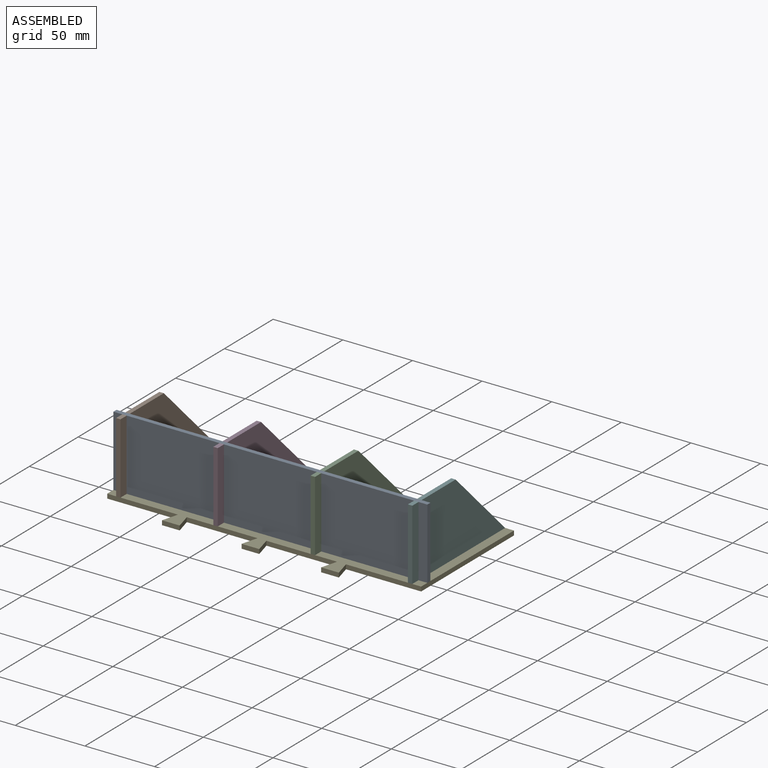
[diagram: assembled view]
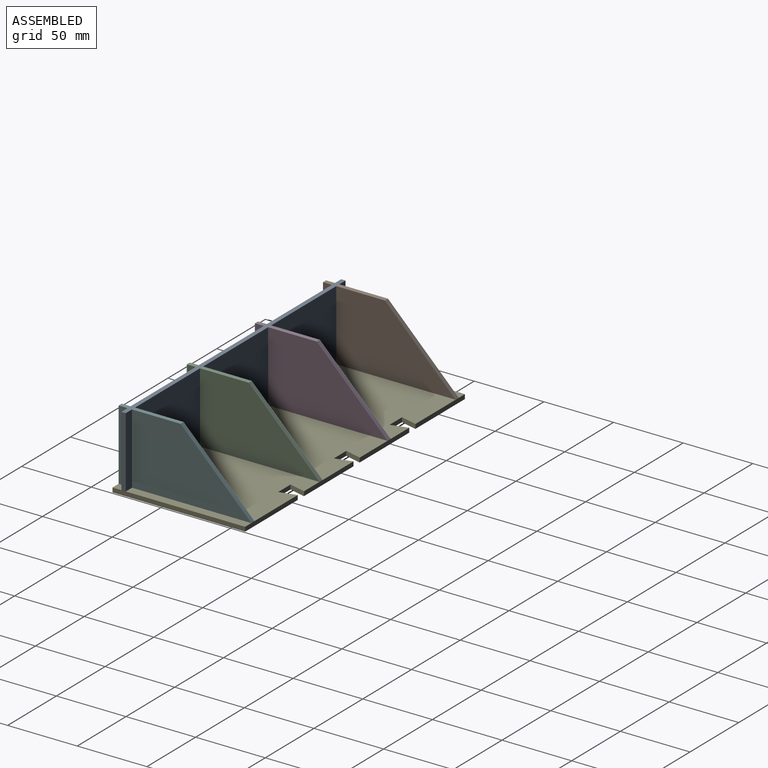
[diagram: assembled view, second angle]
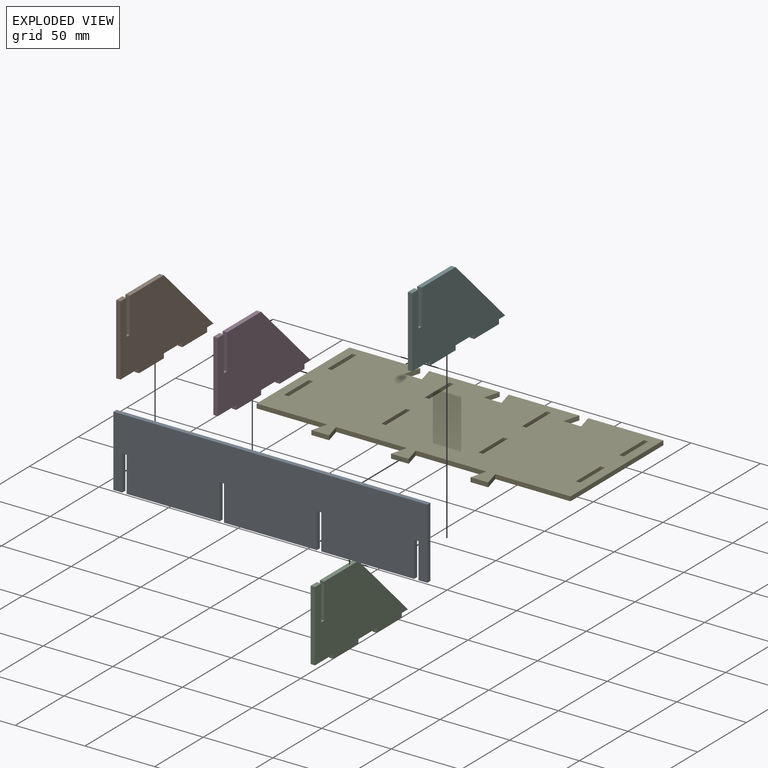
[diagram: exploded view]
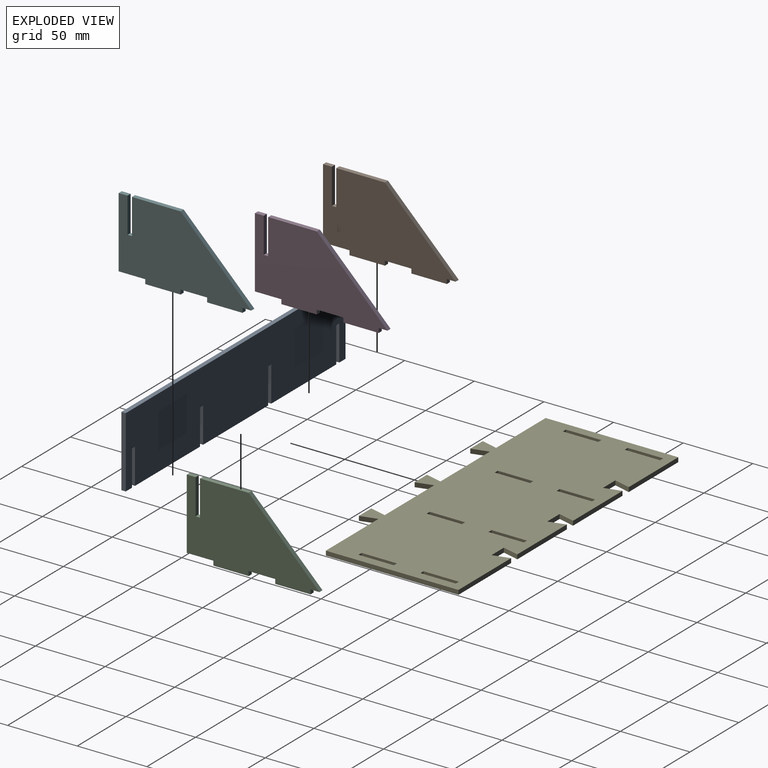
[diagram: exploded view, second angle]
ASSEMBLY  parts=6 mates=2
PART A: 22 faces, bbox 225.4x3.2x50.8 mm
  f0: plane 3.18x3.18mm, normal (0,0,-1), area 10.1mm2, adj f1,f19,f20,f21
  f1: plane 25.4x3.18mm, normal (-1,0,0), area 80.6mm2, adj f0,f2,f20,f21
  f2: plane 6.35x3.18mm, normal (0,0,-1), area 20.2mm2, adj f1,f3,f20,f21
  f3: plane 50.8x3.18mm, normal (1,0,0), area 161.3mm2, adj f2,f4,f20,f21
  f4: plane 225.43x3.18mm, normal (0,0,1), area 715.7mm2, adj f3,f5,f20,f21
  f5: plane 50.8x3.18mm, normal (-1,0,0), area 161.3mm2, adj f4,f6,f20,f21
  f6: plane 6.35x3.18mm, normal (0,0,-1), area 20.2mm2, adj f5,f7,f20,f21
  f7: plane 25.4x3.18mm, normal (1,0,0), area 80.6mm2, adj f6,f8,f20,f21
  f8: plane 3.18x3.18mm, normal (0,0,-1), area 10.1mm2, adj f7,f9,f20,f21
  f9: plane 25.4x3.18mm, normal (-1,0,0), area 80.6mm2, adj f8,f10,f20,f21
  f10: plane 66.68x3.18mm, normal (0,0,-1), area 211.7mm2, adj f9,f11,f20,f21
  f11: plane 25.4x3.18mm, normal (1,0,0), area 80.6mm2, adj f10,f12,f20,f21
  f12: plane 3.18x3.18mm, normal (0,0,-1), area 10.1mm2, adj f11,f13,f20,f21
  f13: plane 25.4x3.18mm, normal (-1,0,0), area 80.6mm2, adj f12,f14,f20,f21
  f14: plane 66.68x3.18mm, normal (0,0,-1), area 211.7mm2, adj f13,f15,f20,f21
  f15: plane 25.4x3.18mm, normal (1,0,0), area 80.6mm2, adj f14,f16,f20,f21
  f16: plane 3.18x3.18mm, normal (0,0,-1), area 10.1mm2, adj f15,f17,f20,f21
  f17: plane 25.4x3.18mm, normal (-1,0,0), area 80.6mm2, adj f16,f18,f20,f21
  f18: plane 66.68x3.18mm, normal (0,0,-1), area 211.7mm2, adj f17,f19,f20,f21
  f19: plane 25.4x3.18mm, normal (1,0,0), area 80.6mm2, adj f0,f18,f20,f21
  f20: plane 225.43x50.8mm, normal (0,-1,0), area 11129mm2, adj f0,f1,f2,f3,f4,f5,f6,f7
  f21: plane 225.43x50.8mm, normal (0,1,0), area 11129mm2, adj f0,f1,f2,f3,f4,f5,f6,f7
PART B: 18 faces, bbox 3.2x95.3x54 mm
  f0: plane 3.18x3.18mm, normal (0,-1,0), area 10.1mm2, adj f1,f15,f16,f17
  f1: plane 25.4x3.18mm, normal (0,0,-1), area 80.6mm2, adj f0,f2,f16,f17
  f2: plane 3.18x3.18mm, normal (0,1,0), area 10.1mm2, adj f1,f3,f16,f17
  f3: plane 19.05x3.18mm, normal (0,0,-1), area 60.5mm2, adj f2,f4,f16,f17
  f4: plane 50.8x3.18mm, normal (0,1,0), area 161.3mm2, adj f3,f5,f16,f17
  f5: plane 6.35x3.18mm, normal (0,0,1), area 20.2mm2, adj f4,f6,f16,f17
  f6: plane 25.4x3.18mm, normal (0,-1,0), area 80.6mm2, adj f5,f7,f16,f17
  f7: plane 3.18x3.18mm, normal (0,0,1), area 10.1mm2, adj f6,f8,f16,f17
  f8: plane 25.4x3.18mm, normal (0,1,0), area 80.6mm2, adj f7,f9,f16,f17
  f9: plane 34.93x3.18mm, normal (0,0,1), area 110.9mm2, adj f8,f10,f16,f17
  f10: plane 50.8x50.8mm, normal (0,-0.71,0.71), area 228.1mm2, adj f9,f11,f16,f17
  f11: plane 6.35x3.18mm, normal (0,0,-1), area 20.2mm2, adj f10,f12,f16,f17
  f12: plane 3.18x3.18mm, normal (0,-1,0), area 10.1mm2, adj f11,f13,f16,f17
  f13: plane 25.4x3.18mm, normal (0,0,-1), area 80.6mm2, adj f12,f14,f16,f17
  f14: plane 3.18x3.18mm, normal (0,1,0), area 10.1mm2, adj f13,f15,f16,f17
  f15: plane 19.05x3.18mm, normal (0,0,-1), area 60.5mm2, adj f0,f14,f16,f17
  f16: plane 95.25x53.98mm, normal (1,0,0), area 3629mm2, adj f0,f1,f2,f3,f4,f5,f6,f7
  f17: plane 95.25x53.98mm, normal (-1,0,0), area 3629mm2, adj f0,f1,f2,f3,f4,f5,f6,f7
PART C: same geometry as B
PART D: same geometry as B
PART E: 62 faces, bbox 225.4x107.1x3.2 mm
  f0: plane 53.98x3.18mm, normal (0,-1,0), area 171.4mm2, adj f3,f7,f10,f61
  f1: plane 50.8x3.18mm, normal (0,-1,0), area 161.3mm2, adj f3,f7,f58,f59
  f2: plane 50.8x3.18mm, normal (0,-1,0), area 161.3mm2, adj f3,f7,f55,f56
  f3: plane 225.43x107.1mm, normal (0,0,1), area 20826.6mm2, adj f0,f1,f2,f4,f5,f6,f8,f9
  f4: plane 53.98x3.18mm, normal (0,1,0), area 171.4mm2, adj f3,f7,f10,f52
  f5: plane 50.8x3.18mm, normal (0,1,0), area 161.3mm2, adj f3,f7,f49,f50
  f6: plane 50.8x3.18mm, normal (0,1,0), area 161.3mm2, adj f3,f7,f46,f47
  f7: plane 225.43x107.1mm, normal (0,0,-1), area 20826.6mm2, adj f0,f1,f2,f4,f5,f6,f8,f9
  f8: plane 95.25x3.18mm, normal (-1,0,0), area 302.4mm2, adj f3,f7,f9,f11
  f9: plane 50.8x3.18mm, normal (0,-1,0), area 161.3mm2, adj f3,f7,f8,f53
  f10: plane 95.25x3.18mm, normal (1,0,0), area 302.4mm2, adj f0,f3,f4,f7
  f11: plane 50.8x3.18mm, normal (0,1,0), area 161.3mm2, adj f3,f7,f8,f44
  f12: plane 3.18x3.18mm, normal (0,1,0), area 10.1mm2, adj f3,f7,f13,f14
  f13: plane 25.4x3.18mm, normal (-1,0,0), area 80.6mm2, adj f3,f7,f12,f15
  f14: plane 25.4x3.18mm, normal (1,0,0), area 80.6mm2, adj f3,f7,f12,f15
  f15: plane 3.18x3.18mm, normal (0,-1,0), area 10.1mm2, adj f3,f7,f13,f14
  f16: plane 3.18x3.18mm, normal (0,1,0), area 10.1mm2, adj f3,f7,f17,f18
  f17: plane 25.4x3.18mm, normal (-1,0,0), area 80.6mm2, adj f3,f7,f16,f19
  f18: plane 25.4x3.18mm, normal (1,0,0), area 80.6mm2, adj f3,f7,f16,f19
  f19: plane 3.18x3.18mm, normal (0,-1,0), area 10.1mm2, adj f3,f7,f17,f18
  f20: plane 3.18x3.18mm, normal (0,1,0), area 10.1mm2, adj f3,f7,f21,f22
  f21: plane 25.4x3.18mm, normal (-1,0,0), area 80.6mm2, adj f3,f7,f20,f23
  f22: plane 25.4x3.18mm, normal (1,0,0), area 80.6mm2, adj f3,f7,f20,f23
  f23: plane 3.18x3.18mm, normal (0,-1,0), area 10.1mm2, adj f3,f7,f21,f22
  f24: plane 3.18x3.18mm, normal (0,1,0), area 10.1mm2, adj f3,f7,f25,f26
  f25: plane 25.4x3.18mm, normal (-1,0,0), area 80.6mm2, adj f3,f7,f24,f27
  f26: plane 25.4x3.18mm, normal (1,0,0), area 80.6mm2, adj f3,f7,f24,f27
  f27: plane 3.18x3.18mm, normal (0,-1,0), area 10.1mm2, adj f3,f7,f25,f26
  f28: plane 3.18x3.18mm, normal (0,1,0), area 10.1mm2, adj f3,f7,f29,f30
  f29: plane 25.4x3.18mm, normal (-1,0,0), area 80.6mm2, adj f3,f7,f28,f31
  f30: plane 25.4x3.18mm, normal (1,0,0), area 80.6mm2, adj f3,f7,f28,f31
  f31: plane 3.18x3.18mm, normal (0,-1,0), area 10.1mm2, adj f3,f7,f29,f30
  f32: plane 3.18x3.18mm, normal (0,1,0), area 10.1mm2, adj f3,f7,f33,f34
  f33: plane 25.4x3.18mm, normal (-1,0,0), area 80.6mm2, adj f3,f7,f32,f35
  f34: plane 25.4x3.18mm, normal (1,0,0), area 80.6mm2, adj f3,f7,f32,f35
  f35: plane 3.18x3.18mm, normal (0,-1,0), area 10.1mm2, adj f3,f7,f33,f34
  f36: plane 3.18x3.18mm, normal (0,1,0), area 10.1mm2, adj f3,f7,f37,f38
  f37: plane 25.4x3.18mm, normal (-1,0,0), area 80.6mm2, adj f3,f7,f36,f39
  f38: plane 25.4x3.18mm, normal (1,0,0), area 80.6mm2, adj f3,f7,f36,f39
  f39: plane 3.18x3.18mm, normal (0,-1,0), area 10.1mm2, adj f3,f7,f37,f38
  f40: plane 3.18x3.18mm, normal (0,1,0), area 10.1mm2, adj f3,f7,f41,f42
  f41: plane 25.4x3.18mm, normal (-1,0,0), area 80.6mm2, adj f3,f7,f40,f43
  f42: plane 25.4x3.18mm, normal (1,0,0), area 80.6mm2, adj f3,f7,f40,f43
  f43: plane 3.18x3.18mm, normal (0,-1,0), area 10.1mm2, adj f3,f7,f41,f42
  f44: plane 11.85x3.18mm, normal (0.97,-0.26,0), area 38.9mm2, adj f3,f7,f11,f45
  f45: plane 12.7x3.18mm, normal (0,1,0), area 40.3mm2, adj f3,f7,f44,f46
  f46: plane 11.85x3.18mm, normal (-0.97,-0.26,0), area 38.9mm2, adj f3,f6,f7,f45
  f47: plane 11.85x3.18mm, normal (0.97,-0.26,0), area 38.9mm2, adj f3,f6,f7,f48
  f48: plane 12.7x3.18mm, normal (0,1,0), area 40.3mm2, adj f3,f7,f47,f49
  f49: plane 11.85x3.18mm, normal (-0.97,-0.26,0), area 38.9mm2, adj f3,f5,f7,f48
  f50: plane 11.85x3.18mm, normal (0.97,-0.26,0), area 38.9mm2, adj f3,f5,f7,f51
  f51: plane 12.7x3.18mm, normal (0,1,0), area 40.3mm2, adj f3,f7,f50,f52
  f52: plane 11.85x3.18mm, normal (-0.97,-0.26,0), area 38.9mm2, adj f3,f4,f7,f51
  f53: plane 11.85x3.18mm, normal (-0.97,0.26,0), area 38.9mm2, adj f3,f7,f9,f54
  f54: plane 12.7x3.18mm, normal (0,-1,0), area 40.3mm2, adj f3,f7,f53,f55
  f55: plane 11.85x3.18mm, normal (0.97,0.26,0), area 38.9mm2, adj f2,f3,f7,f54
  f56: plane 11.85x3.18mm, normal (-0.97,0.26,0), area 38.9mm2, adj f2,f3,f7,f57
  f57: plane 12.7x3.18mm, normal (0,-1,0), area 40.3mm2, adj f3,f7,f56,f58
  f58: plane 11.85x3.18mm, normal (0.97,0.26,0), area 38.9mm2, adj f1,f3,f7,f57
  f59: plane 11.85x3.18mm, normal (-0.97,0.26,0), area 38.9mm2, adj f1,f3,f7,f60
  f60: plane 12.7x3.18mm, normal (0,-1,0), area 40.3mm2, adj f3,f7,f59,f61
  f61: plane 11.85x3.18mm, normal (0.97,0.26,0), area 38.9mm2, adj f0,f3,f7,f60
PART F: same geometry as B
PLACE A t=(-31.38,-83.23,-14.28)mm
PLACE B rot(axis=(0,0,1),180deg) t=(-136.15,-45.13,-14.28)mm
PLACE C rot(axis=(0,0,1),180deg) t=(3.55,-45.13,-14.28)mm
PLACE D rot(axis=(0,0,1),180deg) t=(-66.3,-45.13,-14.28)mm
PLACE E t=(-25.03,-45.13,-42.85)mm
PLACE F rot(axis=(0,0,1),180deg) t=(73.4,-45.13,-14.28)mm
MATE fastened B.f2 <-> E.f28  axis (0,-1,0) through (-136.15,-73.71,-41.26)mm
MATE fastened A.f8 <-> B.f7  axis (0,0,-1) through (-136.15,-84.82,-14.28)mm
